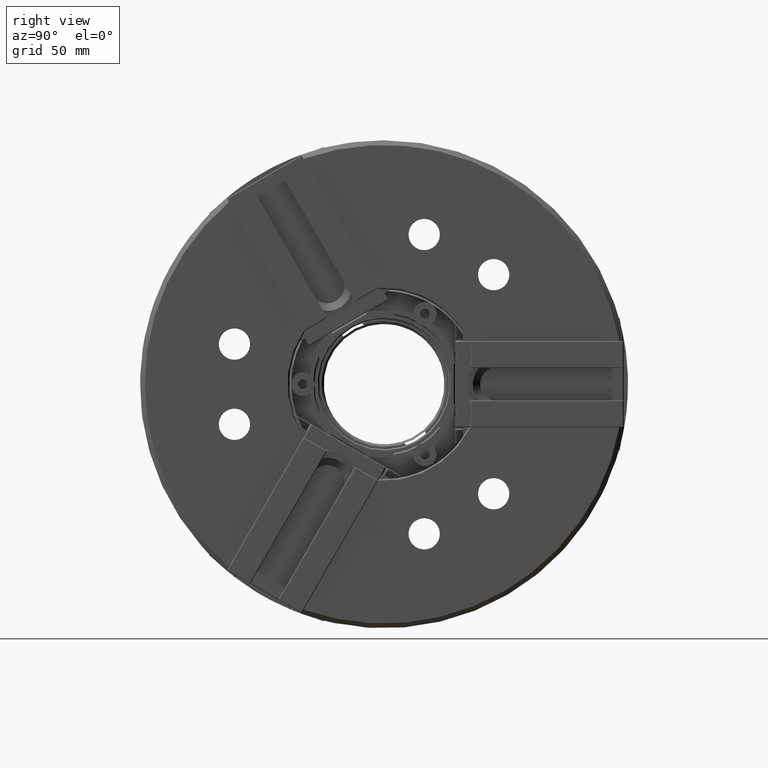
[diagram: clean part render]
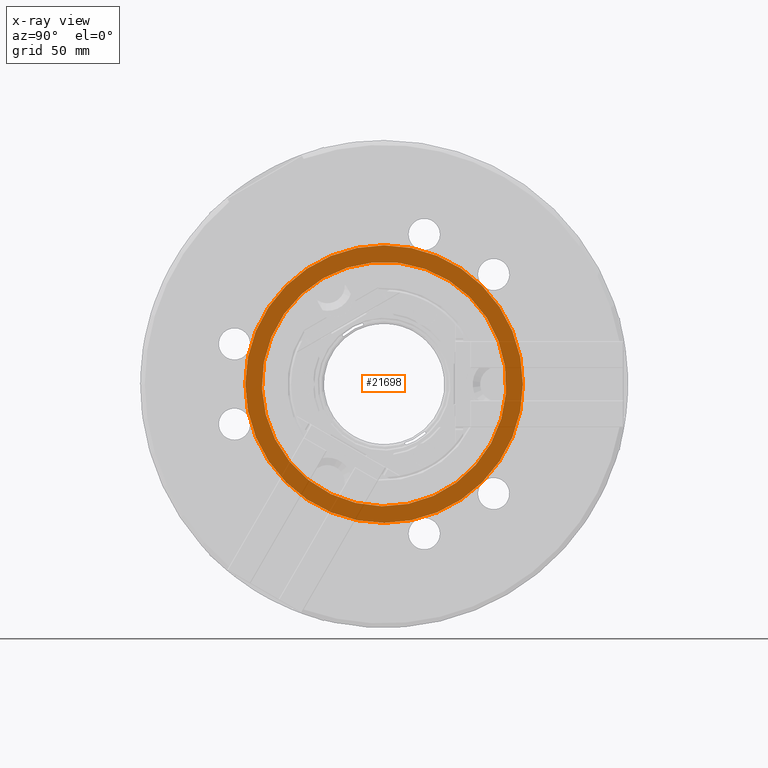
[diagram: x-ray — body ghosted, one internal face saturated and labeled with its STEP entity id]
A machine part, right view, then the same camera in x-ray: the body is ghosted and one INTERNAL B-rep face — a face not visible from any outside direction — is saturated and labeled: STEP entity #21698.
In plain terms, the highlighted planar face has unit normal (1, 0, 0).
Its self-contained STEP definition (entity closure, byte-faithful):
#5478=PLANE('',#23739);
#11600=ORIENTED_EDGE('',*,*,#14685,.T.);
#11601=ORIENTED_EDGE('',*,*,#12160,.F.);
#12160=EDGE_CURVE('',#15139,#15139,#16885,.F.);
#14685=EDGE_CURVE('',#16670,#16670,#17404,.T.);
#15139=VERTEX_POINT('',#31114);
#16670=VERTEX_POINT('',#36967);
#16885=CIRCLE('',#22088,59.7499999999998);
#17404=CIRCLE('',#23676,52.6);
#18830=EDGE_LOOP('',(#11600));
#18831=EDGE_LOOP('',(#11601));
#20271=FACE_BOUND('',#18830,.T.);
#20272=FACE_BOUND('',#18831,.T.);
#21698=ADVANCED_FACE('',(#20271,#20272),#5478,.T.);
#22088=AXIS2_PLACEMENT_3D('',#31113,#24716,#24717);
#23676=AXIS2_PLACEMENT_3D('',#36966,#29729,#29730);
#23739=AXIS2_PLACEMENT_3D('',#37056,#29855,#29856);
#24716=DIRECTION('',(1.,0.,0.));
#24717=DIRECTION('',(0.,0.,-1.));
#29729=DIRECTION('',(-1.,0.,0.));
#29730=DIRECTION('',(0.,-0.5,0.866025403784439));
#29855=DIRECTION('',(1.,0.,0.));
#29856=DIRECTION('',(0.,0.5,-0.866025403784439));
#31113=CARTESIAN_POINT('',(-87.226234567901,0.,0.));
#31114=CARTESIAN_POINT('',(-87.226234567901,0.,-59.7499999999998));
#36966=CARTESIAN_POINT('',(-87.226234567901,2.77555756156289E-14,6.93889390390723E-15));
#36967=CARTESIAN_POINT('',(-87.226234567901,-26.3,45.5529362390615));
#37056=CARTESIAN_POINT('',(-87.226234567901,-42.,72.7461339178929));